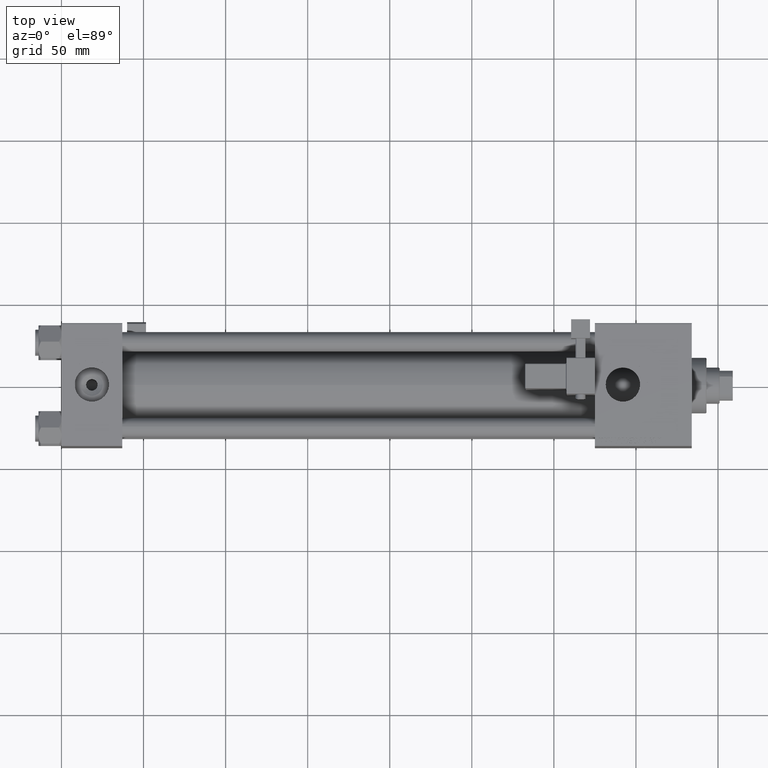
[diagram: clean part render]
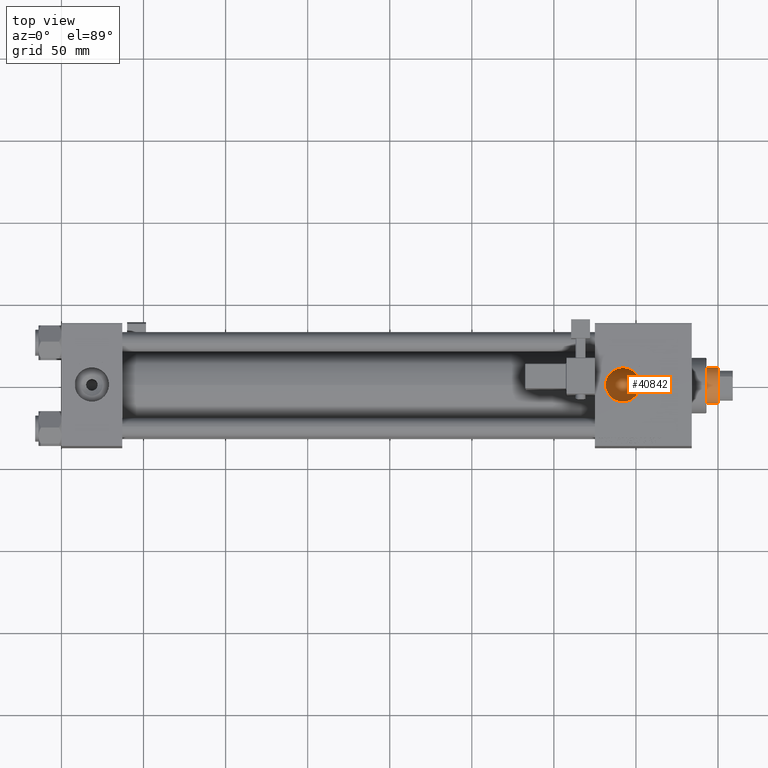
[diagram: same view with one face highlighted and labeled with its STEP entity id]
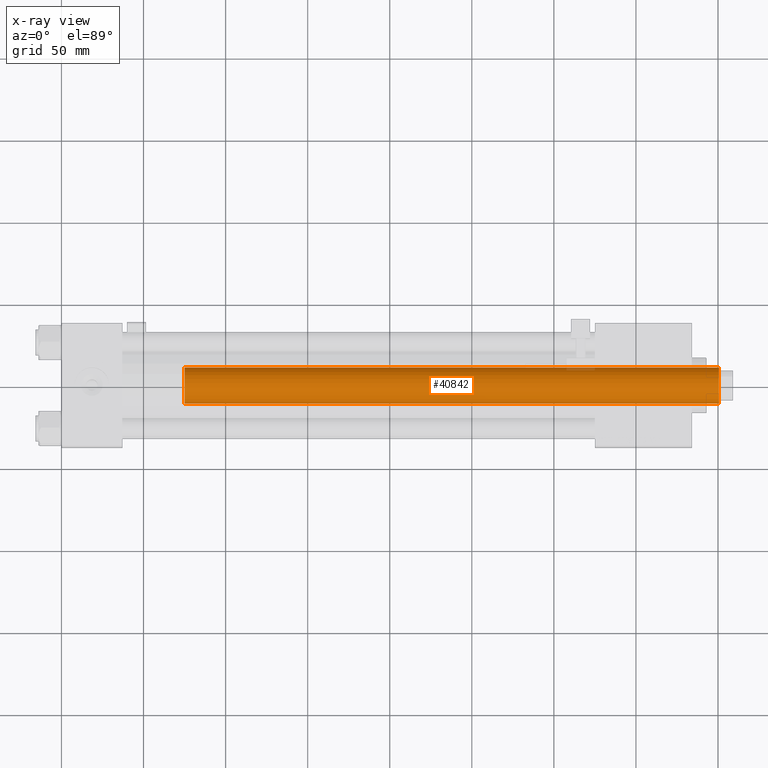
[diagram: x-ray of the same camera — body ghosted, the highlighted face saturated]
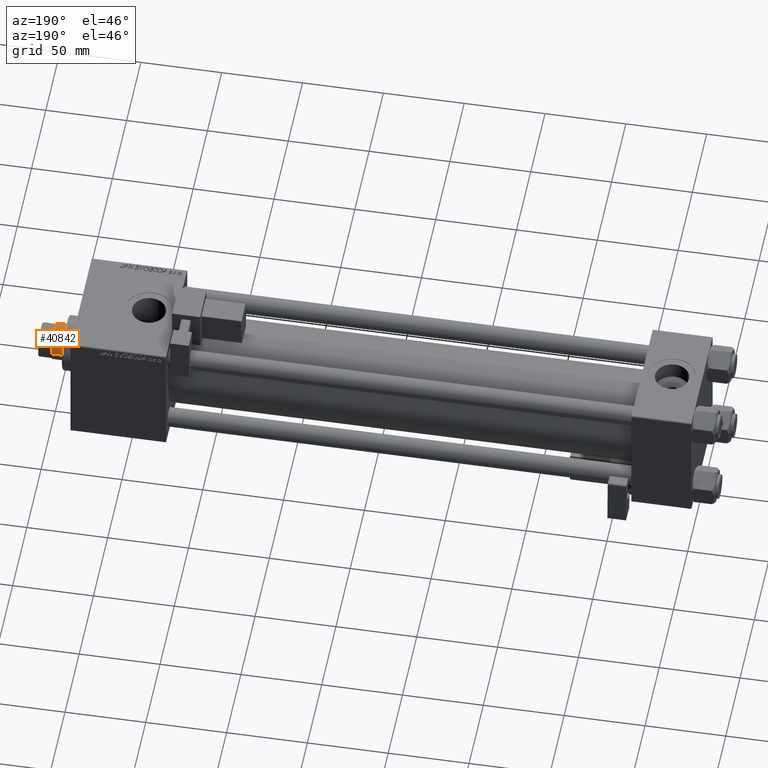
[diagram: same view with one face highlighted and labeled with its STEP entity id]
A machine part, top view. The second image highlights one B-rep face of the part: STEP entity #40842.
The next image is the same camera in x-ray: the body ghosted, the highlighted face saturated — about 1% of this face is hidden behind the body in this view.
A second angle (auxiliary view) of the same face is appended — the face is thin or edge-on in the first view.
In plain terms, the highlighted cylindrical surface (edge-blend (fillet) strip) has radius 11 mm, axis along (-1, 0, 0).
Its self-contained STEP definition (entity closure, byte-faithful):
#6490 = DIRECTION ( 'NONE',  ( 0.000000000000000000, 0.000000000000000000, 1.000000000000000000 ) ) ;
#6743 = AXIS2_PLACEMENT_3D ( 'NONE', #46884, #6490, #10490 ) ;
#7355 = VERTEX_POINT ( 'NONE', #28720 ) ;
#8028 = EDGE_CURVE ( 'NONE', #17327, #29460, #43233, .T. ) ;
#9477 = DIRECTION ( 'NONE',  ( -0.000000000000000000, -0.000000000000000000, -1.000000000000000000 ) ) ;
#10490 = DIRECTION ( 'NONE',  ( 1.000000000000000000, 0.000000000000000000, 0.000000000000000000 ) ) ;
#10714 = DIRECTION ( 'NONE',  ( -1.000000000000000000, 0.000000000000000000, 0.000000000000000000 ) ) ;
#13575 = EDGE_CURVE ( 'NONE', #7355, #17327, #33410, .T. ) ;
#14300 = CARTESIAN_POINT ( 'NONE',  ( -11.00000000000000000, 0.000000000000000000, 38.00000000000000000 ) ) ;
#17327 = VERTEX_POINT ( 'NONE', #14300 ) ;
#18239 = CARTESIAN_POINT ( 'NONE',  ( -11.00000000000000000, 0.000000000000000000, 364.0000000000000000 ) ) ;
#20466 = ORIENTED_EDGE ( 'NONE', *, *, #34226, .T. ) ;
#20919 = CIRCLE ( 'NONE', #45531, 11.00000000000000000 ) ;
#22410 = CARTESIAN_POINT ( 'NONE',  ( 11.00000000000000000, 1.347111479062088405E-15, 364.0000000000000000 ) ) ;
#22839 = CARTESIAN_POINT ( 'NONE',  ( 0.000000000000000000, 0.000000000000000000, 363.4999999999999432 ) ) ;
#23735 = CARTESIAN_POINT ( 'NONE',  ( 11.00000000000000000, 1.347111479062088405E-15, 363.4999999999999432 ) ) ;
#23786 = VECTOR ( 'NONE', #9477, 1000.000000000000000 ) ;
#28720 = CARTESIAN_POINT ( 'NONE',  ( -11.00000000000000000, 0.000000000000000000, 363.4999999999999432 ) ) ;
#29460 = VERTEX_POINT ( 'NONE', #49303 ) ;
#30796 = EDGE_LOOP ( 'NONE', ( #42101, #20466, #47443, #41090 ) ) ;
#33410 = LINE ( 'NONE', #18239, #23786 ) ;
#34226 = EDGE_CURVE ( 'NONE', #52488, #7355, #20919, .T. ) ;
#38351 = DIRECTION ( 'NONE',  ( -0.000000000000000000, -0.000000000000000000, -1.000000000000000000 ) ) ;
#38619 = FACE_OUTER_BOUND ( 'NONE', #30796, .T. ) ;
#38787 = DIRECTION ( 'NONE',  ( 0.000000000000000000, 0.000000000000000000, -1.000000000000000000 ) ) ;
#39053 = DIRECTION ( 'NONE',  ( 1.000000000000000000, 0.000000000000000000, 0.000000000000000000 ) ) ;
#40705 = AXIS2_PLACEMENT_3D ( 'NONE', #50834, #47114, #10714 ) ;
#40842 = ADVANCED_FACE ( 'NONE', ( #38619 ), #51095, .T. ) ;
#41090 = ORIENTED_EDGE ( 'NONE', *, *, #8028, .T. ) ;
#42101 = ORIENTED_EDGE ( 'NONE', *, *, #46072, .F. ) ;
#42414 = VECTOR ( 'NONE', #38351, 1000.000000000000000 ) ;
#43233 = CIRCLE ( 'NONE', #6743, 11.00000000000000000 ) ;
#43855 = LINE ( 'NONE', #22410, #42414 ) ;
#45531 = AXIS2_PLACEMENT_3D ( 'NONE', #22839, #38787, #39053 ) ;
#46072 = EDGE_CURVE ( 'NONE', #52488, #29460, #43855, .T. ) ;
#46884 = CARTESIAN_POINT ( 'NONE',  ( 0.000000000000000000, 0.000000000000000000, 38.00000000000000000 ) ) ;
#47114 = DIRECTION ( 'NONE',  ( -0.000000000000000000, -0.000000000000000000, -1.000000000000000000 ) ) ;
#47443 = ORIENTED_EDGE ( 'NONE', *, *, #13575, .T. ) ;
#49303 = CARTESIAN_POINT ( 'NONE',  ( 11.00000000000000000, 1.347111479062088405E-15, 38.00000000000000000 ) ) ;
#50834 = CARTESIAN_POINT ( 'NONE',  ( 0.000000000000000000, 0.000000000000000000, 364.0000000000000000 ) ) ;
#51095 = CYLINDRICAL_SURFACE ( 'NONE', #40705, 11.00000000000000000 ) ;
#52488 = VERTEX_POINT ( 'NONE', #23735 ) ;